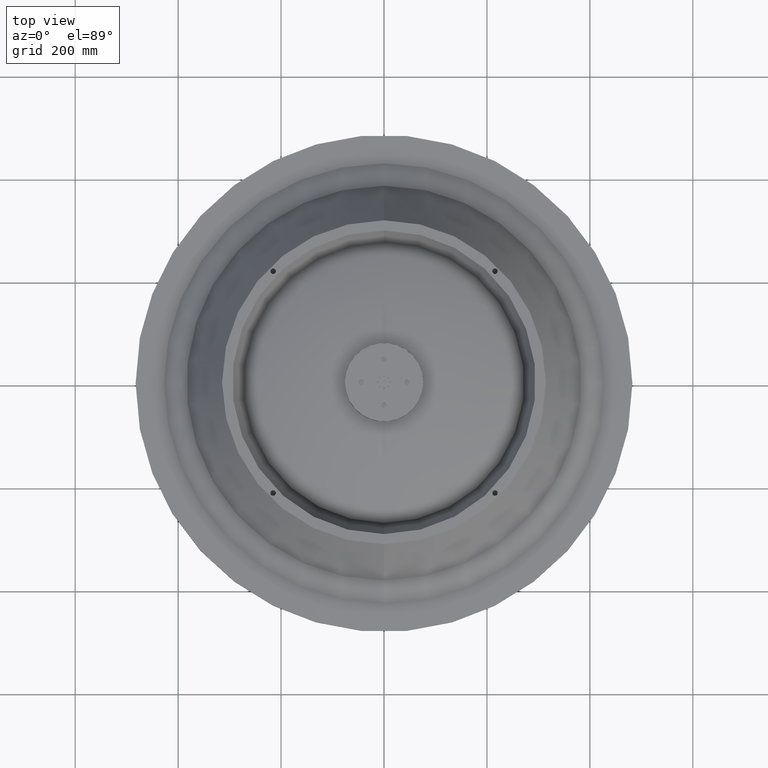
[diagram: clean part render]
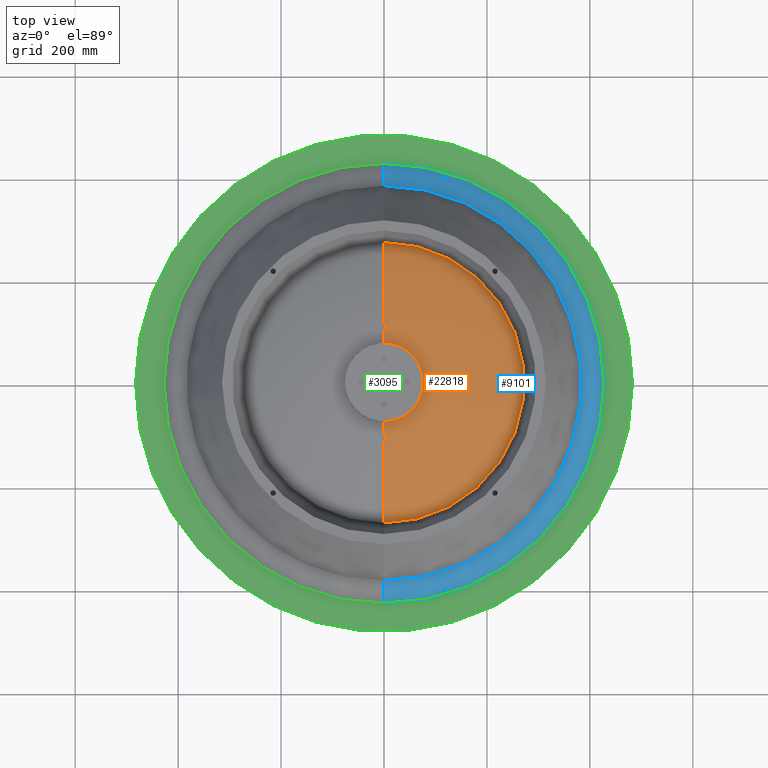
[diagram: same view with three faces highlighted in distinct colors, each labeled with its STEP entity id]
A machine part, top view with three faces highlighted in distinct colors.
Their STEP definitions:

[orange] entity #22818 — the highlighted face is a freeform B-spline surface patch.
#477 = CARTESIAN_POINT ( 'NONE',  ( 3.000000000000000400, -5.307680949098681100E-032, 0.1034266012614664900 ) ) ;
#598 = CARTESIAN_POINT ( 'NONE',  ( 0.0000000000000000000, -8.178297260462326100, -0.6423535246358397200 ) ) ;
#756 = CARTESIAN_POINT ( 'NONE',  ( 0.0000000000000000000, -8.761402134181235400, -0.7927631889134680900 ) ) ;
#1004 = CARTESIAN_POINT ( 'NONE',  ( 4.338367221339926600E-016, 3.542545674687972700, 0.07722810702346764900 ) ) ;
#1064 = CARTESIAN_POINT ( 'NONE',  ( 0.0000000000000000000, -7.003057944026662300, -0.3793098138352933300 ) ) ;
#1361 = CARTESIAN_POINT ( 'NONE',  ( 9.297655635048515400E-016, 7.592111979978150200, -0.5044253856656637500 ) ) ;
#1780 = CARTESIAN_POINT ( 'NONE',  ( 12.82273081658121900, 6.411365408290609300, -0.2673257687624191500 ) ) ;
#1930 = CARTESIAN_POINT ( 'NONE',  ( 9.246152833769144800, -4.623076416884572400, -0.01312035530554998800 ) ) ;
#2069 = CARTESIAN_POINT ( 'NONE',  ( 21.45447521052873800, 10.72723760526436900, -1.398451331977435400 ) ) ;
#2233 = CARTESIAN_POINT ( 'NONE',  ( 8.576272495395696000E-016, 7.003057944026662300, -0.3793098138352951600 ) ) ;
#2378 = CARTESIAN_POINT ( 'NONE',  ( 18.68247448173003300, 9.341237240865014600, -0.9553149776089305800 ) ) ;
#3393 = B_SPLINE_CURVE_WITH_KNOTS ( 'NONE', 4,
 ( #25349, #29081, #7626, #15263, #40459, #23586, #40615, #34191, #33404, #37026, #1361, #29688, #26265, #33250, #29995, #23746, #8548, #19007 ),
 .UNSPECIFIED., .F., .F.,
 ( 5, 1, 1, 1, 1, 1, 1, 1, 1, 1, 1, 1, 1, 1, 5 ),
 ( 0.1452235832421315000, 0.1511274348975392700, 0.1802528101326781000, 0.2093742672583427400, 0.2384975570847923700, 0.2676212068788597600, 0.2967444476614468600, 0.3258675403824193300, 0.3549910972656926100, 0.3841145608837157600, 0.4132378635046548600, 0.4423611425071244400, 0.4714845983616506900, 0.5006080439910261000, 0.5273046613600674800 ),
 .UNSPECIFIED. ) ;
#3720 = FACE_OUTER_BOUND ( 'NONE', #16131, .T. ) ;
#3905 = EDGE_CURVE ( 'NONE', #27463, #12210, #3393, .T. ) ;
#4324 = CARTESIAN_POINT ( 'NONE',  ( 0.0000000000000000000, -5.221088869797715600, -0.08395332366964863800 ) ) ;
#5227 = CARTESIAN_POINT ( 'NONE',  ( 0.0000000000000000000, -3.211392788965687900, 0.09451953058221394800 ) ) ;
#5366 = CARTESIAN_POINT ( 'NONE',  ( 16.35659452092464500, -8.178297260462326100, -0.6423535246358397200 ) ) ;
#5524 = CARTESIAN_POINT ( 'NONE',  ( 0.0000000000000000000, -5.817284467923486500, -0.1687777021273016400 ) ) ;
#5534 = EDGE_CURVE ( 'NONE', #12393, #19615, #18561, .T. ) ;
#5680 = CARTESIAN_POINT ( 'NONE',  ( 20.64674385362985700, 10.32337192681492900, -1.261275920413442300 ) ) ;
#5826 = CARTESIAN_POINT ( 'NONE',  ( 19.81125228330720500, 9.905626141653602400, -1.126031431341027800 ) ) ;
#5970 = CARTESIAN_POINT ( 'NONE',  ( 0.0000000000000000000, -10.32337192681493000, -1.261275920413439600 ) ) ;
#7626 = CARTESIAN_POINT ( 'NONE',  ( 3.932821899811721600E-016, 3.211392788965687900, 0.09451953058221311500 ) ) ;
#8197 = CARTESIAN_POINT ( 'NONE',  ( 6.000000000000000900, -3.000000000000000400, 0.1034266012614668700 ) ) ;
#8509 = CARTESIAN_POINT ( 'NONE',  ( 0.0000000000000000000, -3.000000000000000900, 0.1034266012614668700 ) ) ;
#8548 = CARTESIAN_POINT ( 'NONE',  ( 1.297728018110974600E-015, 10.59675343955909100, -1.353552292328476800 ) ) ;
#8802 = CARTESIAN_POINT ( 'NONE',  ( 6.422785577931374900, 3.211392788965687500, 0.09451953058221308800 ) ) ;
#8962 = CARTESIAN_POINT ( 'NONE',  ( 12.82273081658121900, -6.411365408290610200, -0.2673257687624174300 ) ) ;
#9102 = CARTESIAN_POINT ( 'NONE',  ( 17.52280426836246400, 8.761402134181231800, -0.7927631889134704200 ) ) ;
#9254 = CARTESIAN_POINT ( 'NONE',  ( 1.313707719698013000E-015, 10.72723760526437300, -1.398451331977435400 ) ) ;
#9402 = CARTESIAN_POINT ( 'NONE',  ( 0.0000000000000000000, -7.592111979978150200, -0.5044253856656617500 ) ) ;
#9869 = ORIENTED_EDGE ( 'NONE', *, *, #12013, .F. ) ;
#11089 = EDGE_CURVE ( 'NONE', #12210, #19615, #35246, .T. ) ;
#11226 = CARTESIAN_POINT ( 'NONE',  ( 0.0000000000000000000, -9.905626141653598900, -1.126031431341023600 ) ) ;
#11843 = CARTESIAN_POINT ( 'NONE',  ( 0.0000000000000000000, -6.411365408290610200, -0.2673257687624174300 ) ) ;
#12013 = EDGE_CURVE ( 'NONE', #15359, #27463, #23472, .T. ) ;
#12210 = VERTEX_POINT ( 'NONE', #43554 ) ;
#12242 = CARTESIAN_POINT ( 'NONE',  ( 3.673940397442060900E-016, 3.000000000000000900, 0.1034266012614660600 ) ) ;
#12393 = VERTEX_POINT ( 'NONE', #22308 ) ;
#12539 = CARTESIAN_POINT ( 'NONE',  ( 0.0000000000000000000, -9.905626141653604200, -1.126031431341025300 ) ) ;
#12695 = CARTESIAN_POINT ( 'NONE',  ( 0.0000000000000000000, -9.341237240865016400, -0.9553149776089281400 ) ) ;
#12852 = CARTESIAN_POINT ( 'NONE',  ( 14.00611588805332100, 7.003057944026660500, -0.3793098138352951600 ) ) ;
#13002 = CARTESIAN_POINT ( 'NONE',  ( 20.64674385362985700, -10.32337192681492900, -1.261275920413439600 ) ) ;
#13150 = CARTESIAN_POINT ( 'NONE',  ( 0.0000000000000000000, 1.379617935291264900E-017, 0.1034266012614664900 ) ) ;
#13533 =( BOUNDED_SURFACE ( )  B_SPLINE_SURFACE ( 4, 3, ( 
 ( #8509, #8197, #33684, #12242 ),
 ( #37269, #40892, #44464, #26672 ),
 ( #5227, #30263, #8802, #15375 ),
 ( #40416, #18805, #33822, #1004 ),
 ( #18961, #44003, #22605, #38034 ),
 ( #26833, #1930, #16591, #41500 ),
 ( #27293, #20216, #30547, #37875 ),
 ( #5524, #16444, #41649, #41188 ),
 ( #34285, #8962, #1780, #19743 ),
 ( #20031, #23368, #12852, #2233 ),
 ( #9402, #30408, #27148, #26989 ),
 ( #45220, #5366, #45066, #33962 ),
 ( #44609, #23838, #9102, #16291 ),
 ( #12695, #23674, #2378, #34124 ),
 ( #12539, #44913, #5826, #30852 ),
 ( #5970, #13002, #5680, #41325 ),
 ( #30696, #37728, #34436, #37587 ),
 ( #19895, #23523, #2069, #9254 ) ),
 .UNSPECIFIED., .F., .F., .F. ) 
 B_SPLINE_SURFACE_WITH_KNOTS ( ( 5, 1, 1, 1, 1, 1, 1, 1, 1, 1, 1, 1, 1, 1, 5 ),
 ( 4, 4 ),
 ( 0.1452235832421315300, 0.1511274348975392700, 0.1802528101326781000, 0.2093742672583427400, 0.2384975570847923700, 0.2676212068788597600, 0.2967444476614468600, 0.3258675403824193300, 0.3549910972656926100, 0.3841145608837157600, 0.4132378635046548600, 0.4423611425071244900, 0.4714845983616507400, 0.5006080439910261000, 0.5273046613600687000 ),
 ( 0.0000000000000000000, 1.000000000000000000 ),
 .UNSPECIFIED. ) 
 GEOMETRIC_REPRESENTATION_ITEM ( )  RATIONAL_B_SPLINE_SURFACE ( (
 ( 1.000000000000000000, 0.3333333333333334300, 0.3333333333333334300, 1.000000000000000000),
 ( 1.000000000000000000, 0.3333333333333334300, 0.3333333333333334300, 1.000000000000000000),
 ( 1.000000000000000000, 0.3333333333333334300, 0.3333333333333334300, 1.000000000000000000),
 ( 1.000000000000000000, 0.3333333333333334300, 0.3333333333333334300, 1.000000000000000000),
 ( 1.000000000000000000, 0.3333333333333334300, 0.3333333333333334300, 1.000000000000000000),
 ( 1.000000000000000000, 0.3333333333333334300, 0.3333333333333334300, 1.000000000000000000),
 ( 1.000000000000000000, 0.3333333333333334300, 0.3333333333333334300, 1.000000000000000000),
 ( 1.000000000000000000, 0.3333333333333334300, 0.3333333333333334300, 1.000000000000000000),
 ( 1.000000000000000000, 0.3333333333333334300, 0.3333333333333334300, 1.000000000000000000),
 ( 1.000000000000000000, 0.3333333333333334300, 0.3333333333333334300, 1.000000000000000000),
 ( 1.000000000000000000, 0.3333333333333334300, 0.3333333333333334300, 1.000000000000000000),
 ( 1.000000000000000000, 0.3333333333333334300, 0.3333333333333334300, 1.000000000000000000),
 ( 1.000000000000000000, 0.3333333333333334300, 0.3333333333333334300, 1.000000000000000000),
 ( 1.000000000000000000, 0.3333333333333334300, 0.3333333333333334300, 1.000000000000000000),
 ( 1.000000000000000000, 0.3333333333333334300, 0.3333333333333334300, 1.000000000000000000),
 ( 1.000000000000000000, 0.3333333333333334300, 0.3333333333333334300, 1.000000000000000000),
 ( 1.000000000000000000, 0.3333333333333334300, 0.3333333333333334300, 1.000000000000000000),
 ( 1.000000000000000000, 0.3333333333333334300, 0.3333333333333334300, 1.000000000000000000) ) ) 
 REPRESENTATION_ITEM ( '' )  SURFACE ( )  );
#13547 = AXIS2_PLACEMENT_3D ( 'NONE', #35456, #13675, #13982 ) ;
#13675 = DIRECTION ( 'NONE',  ( -0.0000000000000000000, 1.333910153156378900E-016, 1.000000000000000000 ) ) ;
#13982 = DIRECTION ( 'NONE',  ( 0.0000000000000000000, -1.000000000000000000, 1.309010496964126000E-016 ) ) ;
#14957 = CARTESIAN_POINT ( 'NONE',  ( 0.0000000000000000000, -10.32337192681491800, -1.261275920413436100 ) ) ;
#15263 = CARTESIAN_POINT ( 'NONE',  ( 4.338367221339926600E-016, 3.542545674687972200, 0.07722810702346766300 ) ) ;
#15278 = CARTESIAN_POINT ( 'NONE',  ( 0.0000000000000000000, -3.000000000000000400, 0.1034266012614668800 ) ) ;
#15359 = VERTEX_POINT ( 'NONE', #477 ) ;
#15375 = CARTESIAN_POINT ( 'NONE',  ( 3.932821899811720600E-016, 3.211392788965687900, 0.09451953058221310200 ) ) ;
#16131 = EDGE_LOOP ( 'NONE', ( #22081, #9869, #32826, #25124, #45326 ) ) ;
#16291 = CARTESIAN_POINT ( 'NONE',  ( 1.072962307966784000E-015, 8.761402134181235400, -0.7927631889134704200 ) ) ;
#16444 = CARTESIAN_POINT ( 'NONE',  ( 11.63456893584697100, -5.817284467923486500, -0.1687777021273016400 ) ) ;
#16591 = CARTESIAN_POINT ( 'NONE',  ( 9.246152833769144800, 4.623076416884572400, -0.01312035530555122200 ) ) ;
#18561 = B_SPLINE_CURVE_WITH_KNOTS ( 'NONE', 4,
 ( #15278, #21888, #43445, #39697, #32651, #36261, #4324, #40005, #11843, #1064, #25514, #598, #756, #32969, #11226, #14957, #22341, #33121 ),
 .UNSPECIFIED., .F., .F.,
 ( 5, 1, 1, 1, 1, 1, 1, 1, 1, 1, 1, 1, 1, 1, 5 ),
 ( 0.1452235832421315000, 0.1511274348975392700, 0.1802528101326781000, 0.2093742672583427400, 0.2384975570847923700, 0.2676212068788597600, 0.2967444476614468600, 0.3258675403824193300, 0.3549910972656925600, 0.3841145608837157600, 0.4132378635046548600, 0.4423611425071244400, 0.4714845983616506900, 0.5006080439910261000, 0.5273046613600675900 ),
 .UNSPECIFIED. ) ;
#18805 = CARTESIAN_POINT ( 'NONE',  ( 7.085091349375944400, -3.542545674687973100, 0.07722810702346857800 ) ) ;
#18961 = CARTESIAN_POINT ( 'NONE',  ( 0.0000000000000000000, -4.023536809531676400, 0.04348017057684581300 ) ) ;
#19007 = CARTESIAN_POINT ( 'NONE',  ( 1.367914407603938700E-015, 10.72723760526437400, -1.398451331977431200 ) ) ;
#19615 = VERTEX_POINT ( 'NONE', #43385 ) ;
#19743 = CARTESIAN_POINT ( 'NONE',  ( 7.851658125427159900E-016, 6.411365408290610200, -0.2673257687624191500 ) ) ;
#19895 = CARTESIAN_POINT ( 'NONE',  ( 0.0000000000000000000, -10.72723760526437300, -1.398451331977432500 ) ) ;
#20031 = CARTESIAN_POINT ( 'NONE',  ( 0.0000000000000000000, -7.003057944026662300, -0.3793098138352933300 ) ) ;
#20216 = CARTESIAN_POINT ( 'NONE',  ( 10.44217773959543100, -5.221088869797715600, -0.08395332366964863800 ) ) ;
#20369 = DIRECTION ( 'NONE',  ( -0.0000000000000000000, 1.333910153156378900E-016, 1.000000000000000000 ) ) ;
#21888 = CARTESIAN_POINT ( 'NONE',  ( 0.0000000000000000000, -3.030491322572121900, 0.1021851429775546500 ) ) ;
#22081 = ORIENTED_EDGE ( 'NONE', *, *, #3905, .F. ) ;
#22114 = DIRECTION ( 'NONE',  ( 0.0000000000000000000, 1.000000000000000000, 1.273323149066640200E-016 ) ) ;
#22308 = CARTESIAN_POINT ( 'NONE',  ( 0.0000000000000000000, -3.000000000000000400, 0.1034266012614668800 ) ) ;
#22341 = CARTESIAN_POINT ( 'NONE',  ( 0.0000000000000000000, -10.59675343955909100, -1.353552292328474600 ) ) ;
#22605 = CARTESIAN_POINT ( 'NONE',  ( 8.047073619063350900, 4.023536809531675500, 0.04348017057684473700 ) ) ;
#22818 = ADVANCED_FACE ( 'NONE', ( #3720 ), #13533, .T. ) ;
#23368 = CARTESIAN_POINT ( 'NONE',  ( 14.00611588805332100, -7.003057944026661400, -0.3793098138352933300 ) ) ;
#23472 = CIRCLE ( 'NONE', #13547, 3.000000000000000400 ) ;
#23523 = CARTESIAN_POINT ( 'NONE',  ( 21.45447521052873800, -10.72723760526437100, -1.398451331977432800 ) ) ;
#23586 = CARTESIAN_POINT ( 'NONE',  ( 5.661635736151305800E-016, 4.623076416884572400, -0.01312035530555122200 ) ) ;
#23674 = CARTESIAN_POINT ( 'NONE',  ( 18.68247448173002900, -9.341237240865016400, -0.9553149776089282500 ) ) ;
#23746 = CARTESIAN_POINT ( 'NONE',  ( 1.264248438658153200E-015, 10.32337192681491800, -1.261275920413438300 ) ) ;
#23838 = CARTESIAN_POINT ( 'NONE',  ( 17.52280426836246400, -8.761402134181235400, -0.7927631889134680900 ) ) ;
#24994 = AXIS2_PLACEMENT_3D ( 'NONE', #25906, #43379, #22114 ) ;
#25124 = ORIENTED_EDGE ( 'NONE', *, *, #5534, .T. ) ;
#25349 = CARTESIAN_POINT ( 'NONE',  ( 8.405508797211078500E-016, 3.000000000000000400, 0.1034266012614661100 ) ) ;
#25514 = CARTESIAN_POINT ( 'NONE',  ( 0.0000000000000000000, -7.592111979978150200, -0.5044253856656617500 ) ) ;
#25906 = CARTESIAN_POINT ( 'NONE',  ( 0.0000000000000000000, 1.712608947469516200E-016, -1.398451331977432500 ) ) ;
#26265 = CARTESIAN_POINT ( 'NONE',  ( 1.072962307966784000E-015, 8.761402134181235400, -0.7927631889134704200 ) ) ;
#26672 = CARTESIAN_POINT ( 'NONE',  ( 3.711281498031778400E-016, 3.030491322572121900, 0.1021851429775538400 ) ) ;
#26833 = CARTESIAN_POINT ( 'NONE',  ( 0.0000000000000000000, -4.623076416884572400, -0.01312035530554998800 ) ) ;
#26989 = CARTESIAN_POINT ( 'NONE',  ( 9.297655635048515400E-016, 7.592111979978150200, -0.5044253856656637500 ) ) ;
#27148 = CARTESIAN_POINT ( 'NONE',  ( 15.18422395995629700, 7.592111979978148500, -0.5044253856656637500 ) ) ;
#27293 = CARTESIAN_POINT ( 'NONE',  ( 0.0000000000000000000, -5.221088869797715600, -0.08395332366964863800 ) ) ;
#27463 = VERTEX_POINT ( 'NONE', #43986 ) ;
#29081 = CARTESIAN_POINT ( 'NONE',  ( 3.711281498031777900E-016, 3.030491322572121900, 0.1021851429775538600 ) ) ;
#29688 = CARTESIAN_POINT ( 'NONE',  ( 1.001552556250075500E-015, 8.178297260462326100, -0.6423535246358418300 ) ) ;
#29995 = CARTESIAN_POINT ( 'NONE',  ( 1.213089334792642900E-015, 9.905626141653598900, -1.126031431341026200 ) ) ;
#30263 = CARTESIAN_POINT ( 'NONE',  ( 6.422785577931374900, -3.211392788965687500, 0.09451953058221396200 ) ) ;
#30408 = CARTESIAN_POINT ( 'NONE',  ( 15.18422395995629700, -7.592111979978150200, -0.5044253856656617500 ) ) ;
#30547 = CARTESIAN_POINT ( 'NONE',  ( 10.44217773959543100, 5.221088869797715600, -0.08395332366965004000 ) ) ;
#30696 = CARTESIAN_POINT ( 'NONE',  ( 0.0000000000000000000, -10.59675343955910900, -1.353552292328480400 ) ) ;
#30852 = CARTESIAN_POINT ( 'NONE',  ( 1.213089334792643300E-015, 9.905626141653604200, -1.126031431341028000 ) ) ;
#31545 = EDGE_CURVE ( 'NONE', #12393, #15359, #38161, .T. ) ;
#32651 = CARTESIAN_POINT ( 'NONE',  ( 0.0000000000000000000, -4.023536809531676400, 0.04348017057684581300 ) ) ;
#32826 = ORIENTED_EDGE ( 'NONE', *, *, #31545, .F. ) ;
#32969 = CARTESIAN_POINT ( 'NONE',  ( 0.0000000000000000000, -9.341237240865016400, -0.9553149776089281400 ) ) ;
#33121 = CARTESIAN_POINT ( 'NONE',  ( 0.0000000000000000000, -10.72723760526437400, -1.398451331977434100 ) ) ;
#33250 = CARTESIAN_POINT ( 'NONE',  ( 1.143971628710139500E-015, 9.341237240865016400, -0.9553149776089305800 ) ) ;
#33404 = CARTESIAN_POINT ( 'NONE',  ( 7.851658125427159900E-016, 6.411365408290610200, -0.2673257687624191500 ) ) ;
#33684 = CARTESIAN_POINT ( 'NONE',  ( 6.000000000000000900, 3.000000000000000400, 0.1034266012614660500 ) ) ;
#33822 = CARTESIAN_POINT ( 'NONE',  ( 7.085091349375944400, 3.542545674687971800, 0.07722810702346763500 ) ) ;
#33962 = CARTESIAN_POINT ( 'NONE',  ( 1.001552556250075500E-015, 8.178297260462326100, -0.6423535246358418300 ) ) ;
#34124 = CARTESIAN_POINT ( 'NONE',  ( 1.143971628710139500E-015, 9.341237240865016400, -0.9553149776089305800 ) ) ;
#34191 = CARTESIAN_POINT ( 'NONE',  ( 7.124118803372111500E-016, 5.817284467923486500, -0.1687777021273031700 ) ) ;
#34285 = CARTESIAN_POINT ( 'NONE',  ( 0.0000000000000000000, -6.411365408290610200, -0.2673257687624174300 ) ) ;
#34436 = CARTESIAN_POINT ( 'NONE',  ( 21.19350687911821400, 10.59675343955910700, -1.353552292328483100 ) ) ;
#35246 = CIRCLE ( 'NONE', #24994, 10.72723760526437400 ) ;
#35456 = CARTESIAN_POINT ( 'NONE',  ( 0.0000000000000000000, 1.379617935291264900E-017, 0.1034266012614664900 ) ) ;
#36261 = CARTESIAN_POINT ( 'NONE',  ( 0.0000000000000000000, -4.623076416884572400, -0.01312035530554998800 ) ) ;
#37026 = CARTESIAN_POINT ( 'NONE',  ( 8.576272495395696000E-016, 7.003057944026662300, -0.3793098138352951600 ) ) ;
#37269 = CARTESIAN_POINT ( 'NONE',  ( 0.0000000000000000000, -3.030491322572121900, 0.1021851429775546400 ) ) ;
#37587 = CARTESIAN_POINT ( 'NONE',  ( 1.297728018110976800E-015, 10.59675343955910900, -1.353552292328483300 ) ) ;
#37728 = CARTESIAN_POINT ( 'NONE',  ( 21.19350687911821400, -10.59675343955910900, -1.353552292328480400 ) ) ;
#37875 = CARTESIAN_POINT ( 'NONE',  ( 6.393989772461644600E-016, 5.221088869797715600, -0.08395332366965004000 ) ) ;
#38034 = CARTESIAN_POINT ( 'NONE',  ( 4.927411475044521200E-016, 4.023536809531676400, 0.04348017057684473700 ) ) ;
#38161 = CIRCLE ( 'NONE', #41113, 3.000000000000000400 ) ;
#38195 = DIRECTION ( 'NONE',  ( 0.0000000000000000000, -1.000000000000000000, 1.309010496964126000E-016 ) ) ;
#39697 = CARTESIAN_POINT ( 'NONE',  ( 0.0000000000000000000, -3.542545674687972200, 0.07722810702346860600 ) ) ;
#40005 = CARTESIAN_POINT ( 'NONE',  ( 0.0000000000000000000, -5.817284467923486500, -0.1687777021273016400 ) ) ;
#40416 = CARTESIAN_POINT ( 'NONE',  ( 0.0000000000000000000, -3.542545674687972700, 0.07722810702346857800 ) ) ;
#40459 = CARTESIAN_POINT ( 'NONE',  ( 4.927411475044521200E-016, 4.023536809531676400, 0.04348017057684473700 ) ) ;
#40615 = CARTESIAN_POINT ( 'NONE',  ( 6.393989772461644600E-016, 5.221088869797715600, -0.08395332366965004000 ) ) ;
#40892 = CARTESIAN_POINT ( 'NONE',  ( 6.060982645144243000, -3.030491322572121500, 0.1021851429775546300 ) ) ;
#41113 = AXIS2_PLACEMENT_3D ( 'NONE', #13150, #20369, #38195 ) ;
#41188 = CARTESIAN_POINT ( 'NONE',  ( 7.124118803372111500E-016, 5.817284467923486500, -0.1687777021273031700 ) ) ;
#41325 = CARTESIAN_POINT ( 'NONE',  ( 1.264248438658155000E-015, 10.32337192681493000, -1.261275920413442300 ) ) ;
#41500 = CARTESIAN_POINT ( 'NONE',  ( 5.661635736151305800E-016, 4.623076416884572400, -0.01312035530555122200 ) ) ;
#41649 = CARTESIAN_POINT ( 'NONE',  ( 11.63456893584697100, 5.817284467923485600, -0.1687777021273031700 ) ) ;
#43379 = DIRECTION ( 'NONE',  ( -0.0000000000000000000, 1.224646799147353700E-016, -1.000000000000000000 ) ) ;
#43385 = CARTESIAN_POINT ( 'NONE',  ( 0.0000000000000000000, -10.72723760526437400, -1.398451331977434100 ) ) ;
#43445 = CARTESIAN_POINT ( 'NONE',  ( 0.0000000000000000000, -3.211392788965687900, 0.09451953058221397600 ) ) ;
#43554 = CARTESIAN_POINT ( 'NONE',  ( 1.367914407603938700E-015, 10.72723760526437400, -1.398451331977431200 ) ) ;
#43986 = CARTESIAN_POINT ( 'NONE',  ( 8.405508797211078500E-016, 3.000000000000000400, 0.1034266012614661100 ) ) ;
#44003 = CARTESIAN_POINT ( 'NONE',  ( 8.047073619063350900, -4.023536809531676400, 0.04348017057684581300 ) ) ;
#44464 = CARTESIAN_POINT ( 'NONE',  ( 6.060982645144243000, 3.030491322572121500, 0.1021851429775538400 ) ) ;
#44609 = CARTESIAN_POINT ( 'NONE',  ( 0.0000000000000000000, -8.761402134181235400, -0.7927631889134680900 ) ) ;
#44913 = CARTESIAN_POINT ( 'NONE',  ( 19.81125228330720500, -9.905626141653604200, -1.126031431341025600 ) ) ;
#45066 = CARTESIAN_POINT ( 'NONE',  ( 16.35659452092464500, 8.178297260462322500, -0.6423535246358418300 ) ) ;
#45220 = CARTESIAN_POINT ( 'NONE',  ( 0.0000000000000000000, -8.178297260462326100, -0.6423535246358397200 ) ) ;
#45326 = ORIENTED_EDGE ( 'NONE', *, *, #11089, .F. ) ;

[blue] entity #9101 — the highlighted face is a freeform B-spline surface patch.
#158 = EDGE_CURVE ( 'NONE', #45077, #38707, #12042, .T. ) ;
#767 = AXIS2_PLACEMENT_3D ( 'NONE', #7005, #17752, #21699 ) ;
#2310 = CARTESIAN_POINT ( 'NONE',  ( 0.0000000000000000000, -16.82639142072595100, -4.186136240092017700 ) ) ;
#2465 = CARTESIAN_POINT ( 'NONE',  ( 31.52918588130623700, 15.76459294065311800, -3.602817504516575600 ) ) ;
#2617 = CARTESIAN_POINT ( 'NONE',  ( 33.65278284145188800, -16.82639142072595100, -4.186136240092017700 ) ) ;
#2760 = CARTESIAN_POINT ( 'NONE',  ( 0.0000000000000000000, -15.49901923104661300, -3.463378942795172700 ) ) ;
#2911 = CARTESIAN_POINT ( 'NONE',  ( 0.0000000000000000000, -15.09999999999999100, -3.259194673605344300 ) ) ;
#3114 = CARTESIAN_POINT ( 'NONE',  ( 0.0000000000000000000, 15.09999999999999400, -3.259194673605343900 ) ) ;
#3581 = CARTESIAN_POINT ( 'NONE',  ( 1.999752525557420300E-015, 16.32921857101758400, -3.907523743979159500 ) ) ;
#5678 = ORIENTED_EDGE ( 'NONE', *, *, #23348, .T. ) ;
#5696 = CARTESIAN_POINT ( 'NONE',  ( 0.0000000000000000000, -16.82639142072594400, -4.186136240092020300 ) ) ;
#5907 = CARTESIAN_POINT ( 'NONE',  ( 33.65278284145188800, 16.82639142072594400, -4.186136240092021200 ) ) ;
#6066 = CARTESIAN_POINT ( 'NONE',  ( 1.963120737322284700E-015, 16.03009732021580500, -3.744760524009677300 ) ) ;
#6233 = CARTESIAN_POINT ( 'NONE',  ( 0.0000000000000000000, -15.29930964265253800, -3.360437510372523900 ) ) ;
#6382 = CARTESIAN_POINT ( 'NONE',  ( 1.857318720223624500E-015, 15.16615828757125700, -3.292659555222818400 ) ) ;
#6534 = CARTESIAN_POINT ( 'NONE',  ( 30.33231657514251000, -15.16615828757125700, -3.292659555222814800 ) ) ;
#6749 = CARTESIAN_POINT ( 'NONE',  ( 2.028149220878582200E-015, 16.56109518508241200, -4.036270050176135300 ) ) ;
#7005 = CARTESIAN_POINT ( 'NONE',  ( 0.0000000000000000000, 0.0000000000000000000, -4.186136240092020300 ) ) ;
#7201 = CARTESIAN_POINT ( 'NONE',  ( 1.898082429122450800E-015, 15.49901923104661300, -3.463378942795177100 ) ) ;
#7342 = FACE_OUTER_BOUND ( 'NONE', #19071, .T. ) ;
#7843 = CARTESIAN_POINT ( 'NONE',  ( 0.0000000000000000000, -16.82639142072594400, -4.186136240092020300 ) ) ;
#9101 = ADVANCED_FACE ( 'NONE', ( #7342 ), #12571, .T. ) ;
#9491 = CARTESIAN_POINT ( 'NONE',  ( 2.060638639459251800E-015, 16.82639142072594800, -4.186136240092022100 ) ) ;
#9953 = CARTESIAN_POINT ( 'NONE',  ( 0.0000000000000000000, -16.03009732021580500, -3.744760524009672900 ) ) ;
#12042 = B_SPLINE_CURVE_WITH_KNOTS ( 'NONE', 4,
 ( #3114, #35193, #38939, #7201, #35669, #25063, #3581, #6749, #45988, #39106 ),
 .UNSPECIFIED., .F., .F.,
 ( 5, 1, 1, 1, 1, 1, 5 ),
 ( 0.7573288599453986700, 0.7716723940174782200, 0.7862341260190899300, 0.8007958580207017500, 0.8153575900223134500, 0.8299193220239251500, 0.8521109485560599600 ),
 .UNSPECIFIED. ) ;
#12571 =( BOUNDED_SURFACE ( )  B_SPLINE_SURFACE ( 4, 3, ( 
 ( #2911, #20600, #45623, #24242 ),
 ( #13375, #6534, #31402, #6382 ),
 ( #6233, #45475, #45148, #34365 ),
 ( #2760, #34678, #27842, #13534 ),
 ( #13227, #38269, #2465, #27545 ),
 ( #9953, #41577, #31543, #6066 ),
 ( #30930, #17128, #16828, #37958 ),
 ( #16524, #41883, #13082, #20135 ),
 ( #20450, #23761, #38423, #34838 ),
 ( #2310, #2617, #5907, #9491 ) ),
 .UNSPECIFIED., .F., .F., .F. ) 
 B_SPLINE_SURFACE_WITH_KNOTS ( ( 5, 1, 1, 1, 1, 1, 5 ),
 ( 4, 4 ),
 ( 0.7573288599453986700, 0.7716723940174782200, 0.7862341260190899300, 0.8007958580207017500, 0.8153575900223134500, 0.8299193220239251500, 0.8521109485560600700 ),
 ( 0.0000000000000000000, 1.000000000000000000 ),
 .UNSPECIFIED. ) 
 GEOMETRIC_REPRESENTATION_ITEM ( )  RATIONAL_B_SPLINE_SURFACE ( (
 ( 1.000000000000000000, 0.3333333333333334300, 0.3333333333333334300, 1.000000000000000000),
 ( 1.000000000000000000, 0.3333333333333334300, 0.3333333333333334300, 1.000000000000000000),
 ( 1.000000000000000000, 0.3333333333333334300, 0.3333333333333334300, 1.000000000000000000),
 ( 1.000000000000000000, 0.3333333333333334300, 0.3333333333333334300, 1.000000000000000000),
 ( 1.000000000000000000, 0.3333333333333334300, 0.3333333333333334300, 1.000000000000000000),
 ( 1.000000000000000000, 0.3333333333333334300, 0.3333333333333334300, 1.000000000000000000),
 ( 1.000000000000000000, 0.3333333333333334300, 0.3333333333333334300, 1.000000000000000000),
 ( 1.000000000000000000, 0.3333333333333334300, 0.3333333333333334300, 1.000000000000000000),
 ( 1.000000000000000000, 0.3333333333333334300, 0.3333333333333334300, 1.000000000000000000),
 ( 1.000000000000000000, 0.3333333333333334300, 0.3333333333333334300, 1.000000000000000000) ) ) 
 REPRESENTATION_ITEM ( '' )  SURFACE ( )  );
#13022 = CARTESIAN_POINT ( 'NONE',  ( 0.0000000000000000000, -15.16615828757126200, -3.292659555222816200 ) ) ;
#13082 = CARTESIAN_POINT ( 'NONE',  ( 33.12219037016482300, 16.56109518508241200, -4.036270050176136200 ) ) ;
#13227 = CARTESIAN_POINT ( 'NONE',  ( 0.0000000000000000000, -15.76459294065312200, -3.602817504516571100 ) ) ;
#13375 = CARTESIAN_POINT ( 'NONE',  ( 0.0000000000000000000, -15.16615828757125700, -3.292659555222814400 ) ) ;
#13534 = CARTESIAN_POINT ( 'NONE',  ( 1.898082429122450800E-015, 15.49901923104661300, -3.463378942795177100 ) ) ;
#15434 = CIRCLE ( 'NONE', #39945, 15.09999999999999400 ) ;
#16524 = CARTESIAN_POINT ( 'NONE',  ( 0.0000000000000000000, -16.56109518508241500, -4.036270050176131700 ) ) ;
#16828 = CARTESIAN_POINT ( 'NONE',  ( 32.65843714203515400, 16.32921857101757700, -3.907523743979159900 ) ) ;
#17073 = CARTESIAN_POINT ( 'NONE',  ( 0.0000000000000000000, -16.56109518508241500, -4.036270050176131700 ) ) ;
#17128 = CARTESIAN_POINT ( 'NONE',  ( 32.65843714203515400, -16.32921857101758400, -3.907523743979155900 ) ) ;
#17291 = ORIENTED_EDGE ( 'NONE', *, *, #158, .F. ) ;
#17460 = ORIENTED_EDGE ( 'NONE', *, *, #30631, .T. ) ;
#17752 = DIRECTION ( 'NONE',  ( -0.0000000000000000000, -0.0000000000000000000, 1.000000000000000000 ) ) ;
#18719 = CARTESIAN_POINT ( 'NONE',  ( 0.0000000000000000000, 3.991362324828891200E-016, -3.259194673605346100 ) ) ;
#18855 = B_SPLINE_CURVE_WITH_KNOTS ( 'NONE', 4,
 ( #20537, #13022, #24016, #23859, #27484, #27636, #45565, #17073, #23546, #5696 ),
 .UNSPECIFIED., .F., .F.,
 ( 5, 1, 1, 1, 1, 1, 5 ),
 ( 0.7573288599453988900, 0.7716723940174782200, 0.7862341260190899300, 0.8007958580207017500, 0.8153575900223134500, 0.8299193220239251500, 0.8521109485560600700 ),
 .UNSPECIFIED. ) ;
#19071 = EDGE_LOOP ( 'NONE', ( #17291, #5678, #17460, #44316 ) ) ;
#20135 = CARTESIAN_POINT ( 'NONE',  ( 2.028149220878582200E-015, 16.56109518508241500, -4.036270050176136200 ) ) ;
#20450 = CARTESIAN_POINT ( 'NONE',  ( 0.0000000000000000000, -16.72664032964252500, -4.129492428027306000 ) ) ;
#20537 = CARTESIAN_POINT ( 'NONE',  ( 1.849216666712502600E-015, -15.09999999999999400, -3.259194673605348300 ) ) ;
#20600 = CARTESIAN_POINT ( 'NONE',  ( 30.19999999999997100, -15.09999999999999300, -3.259194673605344300 ) ) ;
#21160 = CARTESIAN_POINT ( 'NONE',  ( 2.060638639459253700E-015, 16.82639142072594400, -4.186136240092020300 ) ) ;
#21699 = DIRECTION ( 'NONE',  ( 1.000000000000000000, 0.0000000000000000000, 0.0000000000000000000 ) ) ;
#23348 = EDGE_CURVE ( 'NONE', #45077, #26525, #15434, .T. ) ;
#23546 = CARTESIAN_POINT ( 'NONE',  ( 0.0000000000000000000, -16.72664032964252500, -4.129492428027306000 ) ) ;
#23761 = CARTESIAN_POINT ( 'NONE',  ( 33.45328065928504200, -16.72664032964252500, -4.129492428027306900 ) ) ;
#23859 = CARTESIAN_POINT ( 'NONE',  ( 0.0000000000000000000, -15.49901923104661500, -3.463378942795174000 ) ) ;
#24016 = CARTESIAN_POINT ( 'NONE',  ( 0.0000000000000000000, -15.29930964265254400, -3.360437510372525200 ) ) ;
#24242 = CARTESIAN_POINT ( 'NONE',  ( 1.849216666712502200E-015, 15.09999999999999100, -3.259194673605348300 ) ) ;
#24966 = CARTESIAN_POINT ( 'NONE',  ( 0.0000000000000000000, 15.09999999999999400, -3.259194673605343900 ) ) ;
#25063 = CARTESIAN_POINT ( 'NONE',  ( 1.963120737322284700E-015, 16.03009732021580500, -3.744760524009677300 ) ) ;
#26525 = VERTEX_POINT ( 'NONE', #34079 ) ;
#27484 = CARTESIAN_POINT ( 'NONE',  ( 0.0000000000000000000, -15.76459294065312200, -3.602817504516571100 ) ) ;
#27545 = CARTESIAN_POINT ( 'NONE',  ( 1.930605828463180600E-015, 15.76459294065312200, -3.602817504516575600 ) ) ;
#27636 = CARTESIAN_POINT ( 'NONE',  ( 0.0000000000000000000, -16.03009732021580500, -3.744760524009672900 ) ) ;
#27842 = CARTESIAN_POINT ( 'NONE',  ( 30.99803846209322000, 15.49901923104661000, -3.463378942795177600 ) ) ;
#29709 = DIRECTION ( 'NONE',  ( -0.0000000000000000000, 1.224646799147353700E-016, -1.000000000000000000 ) ) ;
#30631 = EDGE_CURVE ( 'NONE', #26525, #37758, #18855, .T. ) ;
#30930 = CARTESIAN_POINT ( 'NONE',  ( 0.0000000000000000000, -16.32921857101758400, -3.907523743979155900 ) ) ;
#31402 = CARTESIAN_POINT ( 'NONE',  ( 30.33231657514251000, 15.16615828757125500, -3.292659555222817900 ) ) ;
#31543 = CARTESIAN_POINT ( 'NONE',  ( 32.06019464043160400, 16.03009732021580200, -3.744760524009676800 ) ) ;
#34079 = CARTESIAN_POINT ( 'NONE',  ( 1.849216666712502600E-015, -15.09999999999999400, -3.259194673605348300 ) ) ;
#34365 = CARTESIAN_POINT ( 'NONE',  ( 1.873625058303866800E-015, 15.29930964265253800, -3.360437510372527900 ) ) ;
#34678 = CARTESIAN_POINT ( 'NONE',  ( 30.99803846209322000, -15.49901923104661200, -3.463378942795172700 ) ) ;
#34838 = CARTESIAN_POINT ( 'NONE',  ( 2.048422654018574800E-015, 16.72664032964252500, -4.129492428027310400 ) ) ;
#35193 = CARTESIAN_POINT ( 'NONE',  ( 1.857318720223624500E-015, 15.16615828757125700, -3.292659555222818400 ) ) ;
#35250 = EDGE_CURVE ( 'NONE', #37758, #38707, #40786, .T. ) ;
#35669 = CARTESIAN_POINT ( 'NONE',  ( 1.930605828463180600E-015, 15.76459294065312200, -3.602817504516575600 ) ) ;
#37758 = VERTEX_POINT ( 'NONE', #7843 ) ;
#37958 = CARTESIAN_POINT ( 'NONE',  ( 1.999752525557420300E-015, 16.32921857101758400, -3.907523743979159900 ) ) ;
#38269 = CARTESIAN_POINT ( 'NONE',  ( 31.52918588130623700, -15.76459294065312000, -3.602817504516571600 ) ) ;
#38423 = CARTESIAN_POINT ( 'NONE',  ( 33.45328065928504200, 16.72664032964252100, -4.129492428027310400 ) ) ;
#38707 = VERTEX_POINT ( 'NONE', #21160 ) ;
#38939 = CARTESIAN_POINT ( 'NONE',  ( 1.873625058303866800E-015, 15.29930964265253800, -3.360437510372527900 ) ) ;
#39106 = CARTESIAN_POINT ( 'NONE',  ( 2.060638639459253700E-015, 16.82639142072594400, -4.186136240092020300 ) ) ;
#39945 = AXIS2_PLACEMENT_3D ( 'NONE', #18719, #29709, #43606 ) ;
#40786 = CIRCLE ( 'NONE', #767, 16.82639142072594400 ) ;
#41577 = CARTESIAN_POINT ( 'NONE',  ( 32.06019464043160400, -16.03009732021580500, -3.744760524009672900 ) ) ;
#41883 = CARTESIAN_POINT ( 'NONE',  ( 33.12219037016482300, -16.56109518508241500, -4.036270050176130800 ) ) ;
#43606 = DIRECTION ( 'NONE',  ( 0.0000000000000000000, 1.000000000000000000, 1.085502514038780400E-016 ) ) ;
#44316 = ORIENTED_EDGE ( 'NONE', *, *, #35250, .T. ) ;
#45077 = VERTEX_POINT ( 'NONE', #24966 ) ;
#45148 = CARTESIAN_POINT ( 'NONE',  ( 30.59861928530507300, 15.29930964265253700, -3.360437510372527900 ) ) ;
#45475 = CARTESIAN_POINT ( 'NONE',  ( 30.59861928530507300, -15.29930964265253800, -3.360437510372523900 ) ) ;
#45565 = CARTESIAN_POINT ( 'NONE',  ( 0.0000000000000000000, -16.32921857101758400, -3.907523743979155900 ) ) ;
#45623 = CARTESIAN_POINT ( 'NONE',  ( 30.19999999999997100, 15.09999999999998500, -3.259194673605348300 ) ) ;
#45988 = CARTESIAN_POINT ( 'NONE',  ( 2.048422654018574400E-015, 16.72664032964252100, -4.129492428027310400 ) ) ;

[green] entity #3095 — the highlighted planar face has unit normal (0, 0, -1).
#767 = AXIS2_PLACEMENT_3D ( 'NONE', #7005, #17752, #21699 ) ;
#951 = DIRECTION ( 'NONE',  ( 1.000000000000000000, 0.0000000000000000000, 0.0000000000000000000 ) ) ;
#1040 = ORIENTED_EDGE ( 'NONE', *, *, #35250, .F. ) ;
#1364 = CARTESIAN_POINT ( 'NONE',  ( 0.0000000000000000000, 0.0000000000000000000, -4.186136240092017700 ) ) ;
#2273 = EDGE_LOOP ( 'NONE', ( #36633, #20258 ) ) ;
#2284 = CARTESIAN_POINT ( 'NONE',  ( 0.0000000000000000000, 0.0000000000000000000, -4.186136240092017700 ) ) ;
#3095 = ADVANCED_FACE ( 'NONE', ( #26657, #28907 ), #26531, .F. ) ;
#3517 = CIRCLE ( 'NONE', #39050, 16.82639142072594400 ) ;
#4372 = CARTESIAN_POINT ( 'NONE',  ( 0.0000000000000000000, 0.0000000000000000000, -4.186136240092020300 ) ) ;
#4900 = CARTESIAN_POINT ( 'NONE',  ( 0.0000000000000000000, 18.99999999999997200, -4.186136240092019500 ) ) ;
#6045 = DIRECTION ( 'NONE',  ( 1.000000000000000000, 0.0000000000000000000, 0.0000000000000000000 ) ) ;
#7005 = CARTESIAN_POINT ( 'NONE',  ( 0.0000000000000000000, 0.0000000000000000000, -4.186136240092020300 ) ) ;
#7843 = CARTESIAN_POINT ( 'NONE',  ( 0.0000000000000000000, -16.82639142072594400, -4.186136240092020300 ) ) ;
#8221 = AXIS2_PLACEMENT_3D ( 'NONE', #2284, #20428, #6045 ) ;
#8879 = VERTEX_POINT ( 'NONE', #11708 ) ;
#11708 = CARTESIAN_POINT ( 'NONE',  ( -18.99999999999997200, 2.326828918379967400E-015, -4.186136240092017700 ) ) ;
#11946 = CIRCLE ( 'NONE', #13882, 18.99999999999997200 ) ;
#11979 = DIRECTION ( 'NONE',  ( -0.0000000000000000000, -0.0000000000000000000, 1.000000000000000000 ) ) ;
#12288 = DIRECTION ( 'NONE',  ( 1.000000000000000000, 0.0000000000000000000, 0.0000000000000000000 ) ) ;
#13882 = AXIS2_PLACEMENT_3D ( 'NONE', #1364, #11979, #12288 ) ;
#13889 = EDGE_CURVE ( 'NONE', #8879, #24549, #36212, .T. ) ;
#14243 = AXIS2_PLACEMENT_3D ( 'NONE', #4900, #33961, #19742 ) ;
#14352 = EDGE_CURVE ( 'NONE', #38707, #37758, #3517, .T. ) ;
#15048 = EDGE_CURVE ( 'NONE', #24549, #8879, #11946, .T. ) ;
#15818 = EDGE_LOOP ( 'NONE', ( #1040, #18132 ) ) ;
#17752 = DIRECTION ( 'NONE',  ( -0.0000000000000000000, -0.0000000000000000000, 1.000000000000000000 ) ) ;
#18132 = ORIENTED_EDGE ( 'NONE', *, *, #14352, .F. ) ;
#19742 = DIRECTION ( 'NONE',  ( -1.000000000000000000, 0.0000000000000000000, -0.0000000000000000000 ) ) ;
#20258 = ORIENTED_EDGE ( 'NONE', *, *, #13889, .T. ) ;
#20428 = DIRECTION ( 'NONE',  ( -0.0000000000000000000, -0.0000000000000000000, 1.000000000000000000 ) ) ;
#21160 = CARTESIAN_POINT ( 'NONE',  ( 2.060638639459253700E-015, 16.82639142072594400, -4.186136240092020300 ) ) ;
#21699 = DIRECTION ( 'NONE',  ( 1.000000000000000000, 0.0000000000000000000, 0.0000000000000000000 ) ) ;
#22399 = DIRECTION ( 'NONE',  ( -0.0000000000000000000, -0.0000000000000000000, 1.000000000000000000 ) ) ;
#24549 = VERTEX_POINT ( 'NONE', #33903 ) ;
#26531 = PLANE ( 'NONE',  #14243 ) ;
#26657 = FACE_BOUND ( 'NONE', #15818, .T. ) ;
#28907 = FACE_OUTER_BOUND ( 'NONE', #2273, .T. ) ;
#33903 = CARTESIAN_POINT ( 'NONE',  ( 18.99999999999997200, 0.0000000000000000000, -4.186136240092017700 ) ) ;
#33961 = DIRECTION ( 'NONE',  ( 0.0000000000000000000, 0.0000000000000000000, -1.000000000000000000 ) ) ;
#35250 = EDGE_CURVE ( 'NONE', #37758, #38707, #40786, .T. ) ;
#36212 = CIRCLE ( 'NONE', #8221, 18.99999999999997200 ) ;
#36633 = ORIENTED_EDGE ( 'NONE', *, *, #15048, .T. ) ;
#37758 = VERTEX_POINT ( 'NONE', #7843 ) ;
#38707 = VERTEX_POINT ( 'NONE', #21160 ) ;
#39050 = AXIS2_PLACEMENT_3D ( 'NONE', #4372, #22399, #951 ) ;
#40786 = CIRCLE ( 'NONE', #767, 16.82639142072594400 ) ;